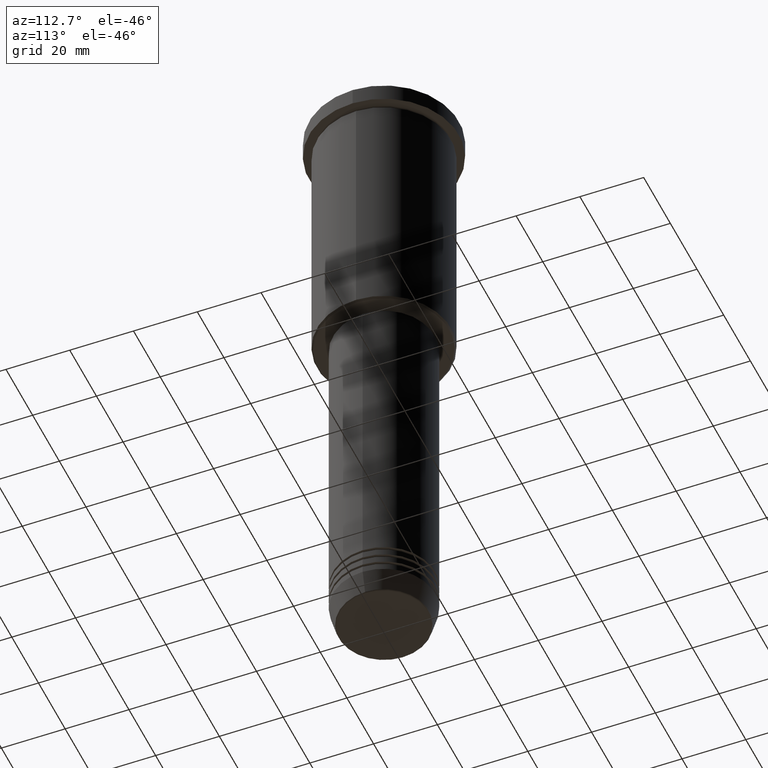
[diagram: clean part render]
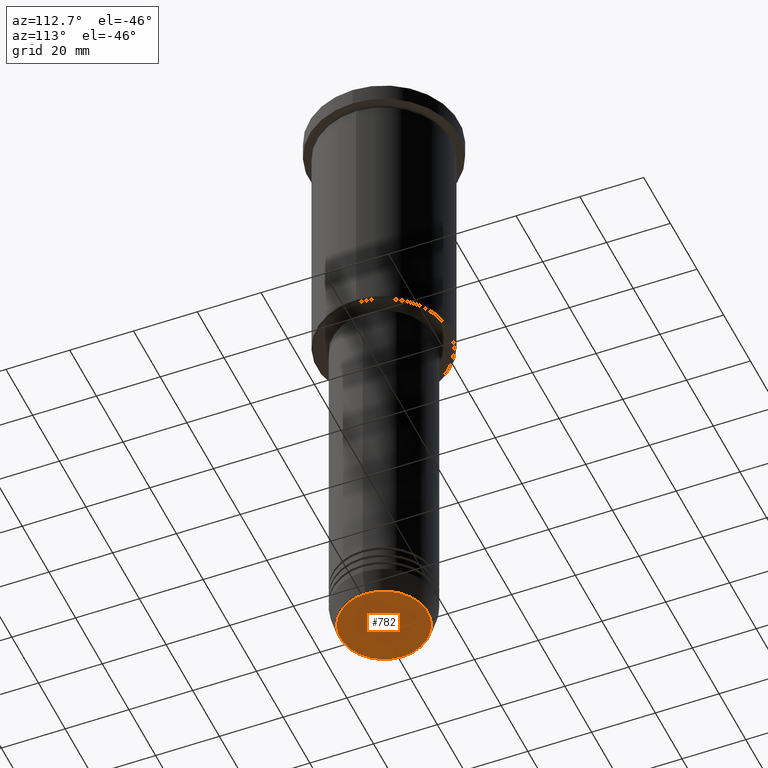
[diagram: same view with one face highlighted and labeled with its STEP entity id]
A machine part, auxiliary view. The second image highlights one B-rep face of the part: STEP entity #782.
In plain terms, the highlighted planar face has unit normal (0, -0, 1).
Its self-contained STEP definition (entity closure, byte-faithful):
#54 = DIRECTION ( 'NONE',  ( 0.000000000000000000, 0.000000000000000000, -1.000000000000000000 ) ) ;
#60 = EDGE_CURVE ( 'NONE', #384, #648, #441, .T. ) ;
#66 = DIRECTION ( 'NONE',  ( 0.000000000000000000, 0.000000000000000000, -1.000000000000000000 ) ) ;
#81 = FACE_OUTER_BOUND ( 'NONE', #1160, .T. ) ;
#249 = AXIS2_PLACEMENT_3D ( 'NONE', #780, #54, #1067 ) ;
#261 = DIRECTION ( 'NONE',  ( 1.000000000000000000, 0.000000000000000000, 0.000000000000000000 ) ) ;
#384 = VERTEX_POINT ( 'NONE', #435 ) ;
#435 = CARTESIAN_POINT ( 'NONE',  ( 13.74069215899265828, 0.000000000000000000, -201.0000000000000000 ) ) ;
#441 = CIRCLE ( 'NONE', #1033, 13.74069215899265828 ) ;
#446 = PLANE ( 'NONE',  #509 ) ;
#497 = ORIENTED_EDGE ( 'NONE', *, *, #954, .T. ) ;
#509 = AXIS2_PLACEMENT_3D ( 'NONE', #806, #719, #261 ) ;
#518 = CARTESIAN_POINT ( 'NONE',  ( -13.74069215899265828, 1.712322416342415986E-15, -201.0000000000000000 ) ) ;
#648 = VERTEX_POINT ( 'NONE', #518 ) ;
#719 = DIRECTION ( 'NONE',  ( 0.000000000000000000, -0.000000000000000000, 1.000000000000000000 ) ) ;
#780 = CARTESIAN_POINT ( 'NONE',  ( 0.000000000000000000, 0.000000000000000000, -201.0000000000000000 ) ) ;
#782 = ADVANCED_FACE ( 'NONE', ( #81 ), #446, .F. ) ;
#792 = ORIENTED_EDGE ( 'NONE', *, *, #60, .T. ) ;
#806 = CARTESIAN_POINT ( 'NONE',  ( 0.000000000000000000, 0.000000000000000000, -201.0000000000000000 ) ) ;
#865 = CIRCLE ( 'NONE', #249, 13.74069215899265828 ) ;
#883 = DIRECTION ( 'NONE',  ( 1.000000000000000000, 0.000000000000000000, 0.000000000000000000 ) ) ;
#954 = EDGE_CURVE ( 'NONE', #648, #384, #865, .T. ) ;
#1033 = AXIS2_PLACEMENT_3D ( 'NONE', #1062, #66, #883 ) ;
#1062 = CARTESIAN_POINT ( 'NONE',  ( 0.000000000000000000, 0.000000000000000000, -201.0000000000000000 ) ) ;
#1067 = DIRECTION ( 'NONE',  ( 1.000000000000000000, 0.000000000000000000, 0.000000000000000000 ) ) ;
#1160 = EDGE_LOOP ( 'NONE', ( #792, #497 ) ) ;